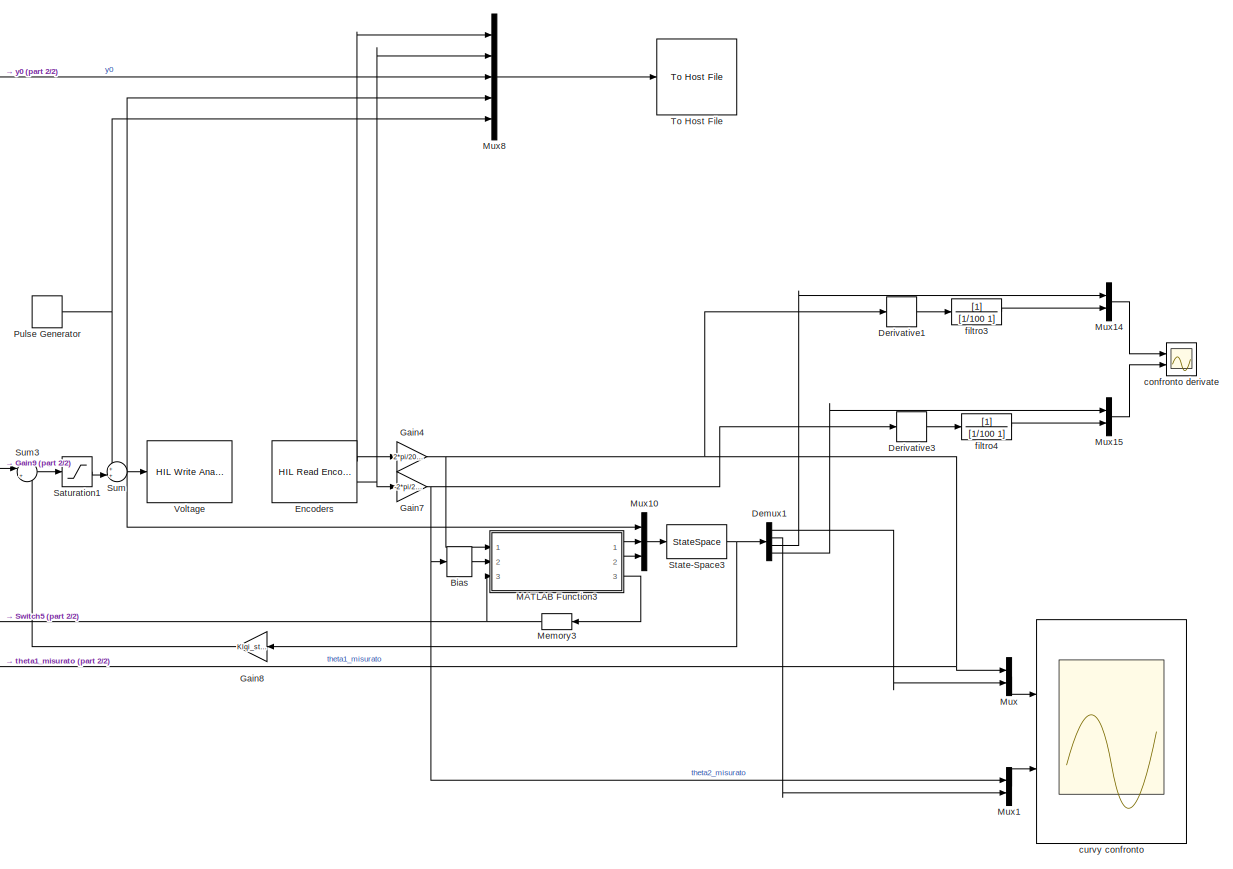
[diagram: root canvas - part 1/2, center side, full height]
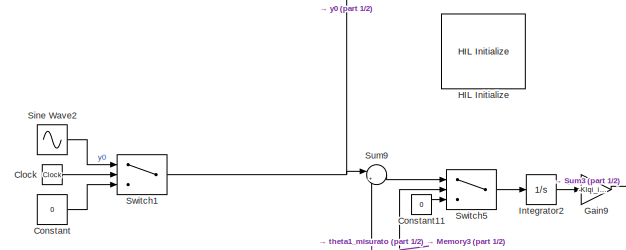
[diagram: root canvas - part 2/2, middle left region]
MODEL slx_d96a321513d4
KIND model
CONFIG AbsTol = auto
CONFIG EnableMultiTasking = on
CONFIG FixedStep = 0.002
CONFIG MaxStep = auto
CONFIG MinStep = auto
CONFIG PostLoadFcn = qc_set_target_type(getConfigSet(bdroot, 'QUARC Default Target Configuration'));
CONFIG RelTol = 1e-3
CONFIG SampleTimeConstraint = Unconstrained
CONFIG Solver = ode1
CONFIG SolverName = ode1
CONFIG StartTime = 0.0
CONFIG StopTime = inf
BLOCK [Bias] Bias
  Bias = -pi
  SaturateOnIntegerOverflow = off
BLOCK [Clock] Clock
BLOCK [Constant] Constant
  Value = 0
BLOCK [Constant] Constant11
  Value = 0
BLOCK [Demux] Demux1
  DisplayOption = bar
  Ports = [1, 4]
BLOCK [Derivative] Derivative1
BLOCK [Derivative] Derivative3
BLOCK [Reference] Encoders  REF=quarc_library/Data Acquisition/Generic/Timebases/HIL Read Encoder
Timebase
  AttributesFormatString = (%<object_name>)
  Ports = [0, 2]
  SourceBlock = quarc_library/Data Acquisition/Generic/Timebases/HIL Read Encoder\nTimebase
  SourceProductName = QUARC Targets
  SourceType = HIL Read Encoder Timebase
  UserDataPersistent = on
BLOCK [Gain] Gain4
  Gain = 2*pi/2048
  OutDataTypeStr = Inherit: Inherit via internal rule
  ParamDataTypeStr = Inherit: Inherit via internal rule
  SaturateOnIntegerOverflow = off
BLOCK [Gain] Gain7
  Gain = -2*pi/2048
  OutDataTypeStr = Inherit: Inherit via internal rule
  ParamDataTypeStr = Inherit: Inherit via internal rule
  SaturateOnIntegerOverflow = off
BLOCK [Gain] Gain8
  Gain = Klqi_state
  Multiplication = Matrix(K*u)
  OutDataTypeStr = Inherit: Inherit via internal rule
  ParamDataTypeStr = Inherit: Inherit via internal rule
  SaturateOnIntegerOverflow = off
BLOCK [Gain] Gain9
  Gain = -Klqi_int
  Multiplication = Matrix(K*u)
  OutDataTypeStr = Inherit: Inherit via internal rule
  ParamDataTypeStr = Inherit: Inherit via internal rule
  SaturateOnIntegerOverflow = off
BLOCK [Reference] HIL Initialize  REF=quarc_library/Data Acquisition/Generic/Configuration/HIL Initialize
  AttributesFormatString = %<object_name> (%<board_type>-%<board_number>)
  Ports = []
  Priority = -99
  SourceBlock = quarc_library/Data Acquisition/Generic/Configuration/HIL Initialize
  SourceProductName = QUARC Targets
  SourceType = HIL Initialize
  UserDataPersistent = on
BLOCK [Integrator] Integrator2
  Ports = [1, 1]
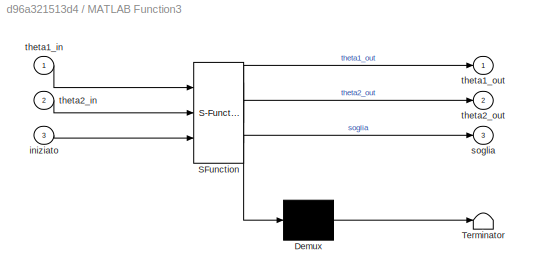
BLOCK [SubSystem] MATLAB Function3
  ErrorFcn = Stateflow.Translate.translate
  PermitHierarchicalResolution = ExplicitOnly
  Ports = [3, 3]
  RequestExecContextInheritance = off
  SFBlockType = MATLAB Function
  TreatAsAtomicUnit = on
BLOCK [Demux] MATLAB Function3/ Demux 
  Outputs = 1
  Ports = [1, 1]
BLOCK [S-Function] MATLAB Function3/ SFunction 
  EnableBusSupport = on
  FunctionName = sf_sfun
  PortCounts = [3 4]
  Ports = [3, 4]
  SFcnIsStateOwnerBlock = off
  SFunctionDeploymentMode = off
  Tag = Stateflow S-Function 5
BLOCK [Terminator] MATLAB Function3/ Terminator 
BLOCK [Inport] MATLAB Function3/iniziato
  IconDisplay = Port number
  Port = 3
BLOCK [Outport] MATLAB Function3/soglia
  IconDisplay = Port number
  Port = 3
BLOCK [Inport] MATLAB Function3/theta1_in
  IconDisplay = Port number
BLOCK [Outport] MATLAB Function3/theta1_out
  IconDisplay = Port number
BLOCK [Inport] MATLAB Function3/theta2_in
  IconDisplay = Port number
  Port = 2
BLOCK [Outport] MATLAB Function3/theta2_out
  IconDisplay = Port number
  Port = 2
BLOCK [Memory] Memory3
BLOCK [Mux] Mux
  DisplayOption = bar
  Inputs = 2
  Ports = [2, 1]
BLOCK [Mux] Mux1
  DisplayOption = bar
  Inputs = 2
  Ports = [2, 1]
BLOCK [Mux] Mux10
  DisplayOption = bar
  Inputs = 3
  Ports = [3, 1]
BLOCK [Mux] Mux14
  DisplayOption = bar
  Inputs = 2
  Ports = [2, 1]
BLOCK [Mux] Mux15
  DisplayOption = bar
  Inputs = 2
  Ports = [2, 1]
BLOCK [Mux] Mux8
  DisplayOption = bar
  Inputs = 5
  Ports = [5, 1]
BLOCK [DiscretePulseGenerator] Pulse Generator
  Amplitude = 0.8
  Period = 10
  Ports = [0, 1]
  PulseType = Time based
BLOCK [Saturate] Saturation1
  InputPortMap = u0
  LowerLimit = -10
  Ports = [1, 1]
  UpperLimit = 10
BLOCK [Sin] Sine Wave2
  Ports = [0, 1]
  SampleTime = 0
BLOCK [StateSpace] State-Space3
  A = Ao
  B = Bo
  C = eye(4)
  D = zeros(4,3)
  InitialCondition = 0
  Ports = [1, 1]
BLOCK [Sum] Sum
  IconShape = round
  InputSameDT = off
  Inputs = ++|
  OutDataTypeStr = Inherit: Inherit via internal rule
  Ports = [2, 1]
  SaturateOnIntegerOverflow = off
BLOCK [Sum] Sum3
  IconShape = round
  InputSameDT = off
  Inputs = |+-
  OutDataTypeStr = Inherit: Inherit via internal rule
  Ports = [2, 1]
  SaturateOnIntegerOverflow = off
BLOCK [Sum] Sum9
  IconShape = round
  InputSameDT = off
  Inputs = |+-
  OutDataTypeStr = Inherit: Inherit via internal rule
  Ports = [2, 1]
  SaturateOnIntegerOverflow = off
BLOCK [Switch] Switch1
  Criteria = u2 > Threshold
  InputSameDT = off
  SaturateOnIntegerOverflow = off
  Threshold = 4*pi
BLOCK [Switch] Switch5
  Criteria = u2 > Threshold
  InputSameDT = off
  SaturateOnIntegerOverflow = off
  Threshold = 1
BLOCK [Reference] To Host File  REF=quarc_library/Sinks/To Host/To Host File
  AttributesFormatString = %<final_file_name>
  Ports = [1]
  SourceBlock = quarc_library/Sinks/To Host/To Host File
  SourceProductName = QUARC Targets
  SourceType = To Host File
BLOCK [Reference] Voltage  REF=quarc_library/Data Acquisition/Generic/Immediate I//O/HIL Write Analog
  AttributesFormatString = (%<object_name>)
  Ports = [1]
  SourceBlock = quarc_library/Data Acquisition/Generic/Immediate I//O/HIL Write Analog
  SourceProductName = QUARC Targets
  SourceType = HIL Write Analog
  UserDataPersistent = on
BLOCK [Scope] confronto derivate 
  Floating = off
  NumInputPorts = 2
  Ports = [2]
  ScopeSpecificationString = Simulink.scopes.TimeScopeBlockCfg('CurrentConfiguration', extmgr.ConfigurationSet(extmgr.Configuration('Core','General UI',true),extmgr.Configuration('Core','Source UI',true),extmgr.Configuration('Sources','WiredSimulink',true,'DataLoggingVariableName','ScopeData3'),extmgr.Configuration('Visuals','Time Domain',true,'SerializedDisplays',{struct('MinYLimReal','-6.39758','MaxYLimReal','2.37423','YLab...<+2196ch>
BLOCK [Scope] curvy confronto
  Floating = off
  NumInputPorts = 2
  Ports = [2]
  ScopeSpecificationString = Simulink.scopes.TimeScopeBlockCfg('CurrentConfiguration', extmgr.ConfigurationSet(extmgr.Configuration('Core','General UI',true),extmgr.Configuration('Core','Source UI',true),extmgr.Configuration('Sources','WiredSimulink',true,'DataLoggingVariableName','ScopeData4'),extmgr.Configuration('Visuals','Time Domain',true,'SerializedDisplays',{struct('MinYLimReal','-1.23157','MaxYLimReal','1.23109','YLab...<+2130ch>
BLOCK [TransferFcn] filtro3
  Denominator = [1/100 1]
BLOCK [TransferFcn] filtro4
  Denominator = [1/100 1]
LINE Bias:1 -> MATLAB Function3:2
LINE Clock:1 -> Switch1:2
LINE Constant11:1 -> Switch5:3
LINE Constant:1 -> Switch1:3
LINE Demux1:1 -> Mux:2
LINE Demux1:2 -> Mux1:2
LINE Demux1:3 -> Mux14:1
LINE Demux1:4 -> Mux15:1
LINE Derivative1:1 -> filtro3:1
LINE Derivative3:1 -> filtro4:1
NET Encoders:1 -> Gain4:1, Mux8:1
NET Encoders:2 -> Gain7:1, Mux8:2
NET Gain4:1 -> Derivative1:1, MATLAB Function3:1, Mux:1, Sum9:2
NET Gain7:1 -> Bias:1, Derivative3:1, Mux1:1
LINE Gain8:1 -> Sum3:2
LINE Gain9:1 -> Sum3:1
LINE Integrator2:1 -> Gain9:1
LINE MATLAB Function3:1 -> Mux10:2
LINE MATLAB Function3:2 -> Mux10:3
LINE MATLAB Function3:3 -> Memory3:1
NET Memory3:1 -> MATLAB Function3:3, Switch5:2
LINE Mux10:1 -> State-Space3:1
LINE Mux14:1 -> confronto derivate :1
LINE Mux15:1 -> confronto derivate :2
LINE Mux1:1 -> curvy confronto:2
LINE Mux8:1 -> To Host File:1
LINE Mux:1 -> curvy confronto:1
NET Pulse Generator:1 -> Mux8:5, Sum:1
LINE Saturation1:1 -> Sum:2
LINE Sine Wave2:1 -> Switch1:1
NET State-Space3:1 -> Demux1:1, Gain8:1
LINE Sum3:1 -> Saturation1:1
LINE Sum9:1 -> Switch5:1
NET Sum:1 -> Mux10:1, Mux8:4, Voltage:1
NET Switch1:1 -> Mux8:3, Sum9:1
LINE Switch5:1 -> Integrator2:1
LINE filtro3:1 -> Mux14:2
LINE filtro4:1 -> Mux15:2
note: NET lines group one-source signal fan-out (src -> all destinations, sorted); 1:1 wires keep LINE
CHART MATLAB Function3 states=1 transitions=1
  STATE_LABEL 'eML_blk_kernel()'
  STATE_LABEL 'SCRIPT:\nfunction [theta1_out, theta2_out, soglia] = fcn(theta1_in, theta2_in, iniziato)\nif theta2_in >= 0.01\n    theta1_out = theta1_in;\n    theta2_out = theta2_in;\n    soglia = 2; \nelseif iniziato >1\n    theta1_out = theta1_in;\n    theta2_out = theta2_in;\n    soglia = 2;\nelse\n    soglia = 0;\n    theta1_out = 0;\n    theta2_out = 0;\nend\nend\n\n\n'
